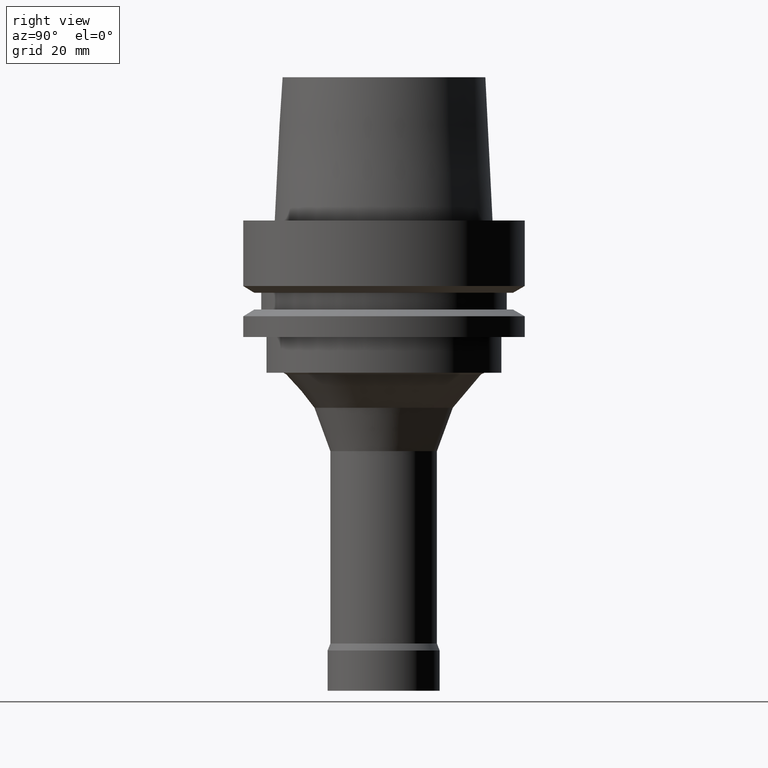
[diagram: clean part render]
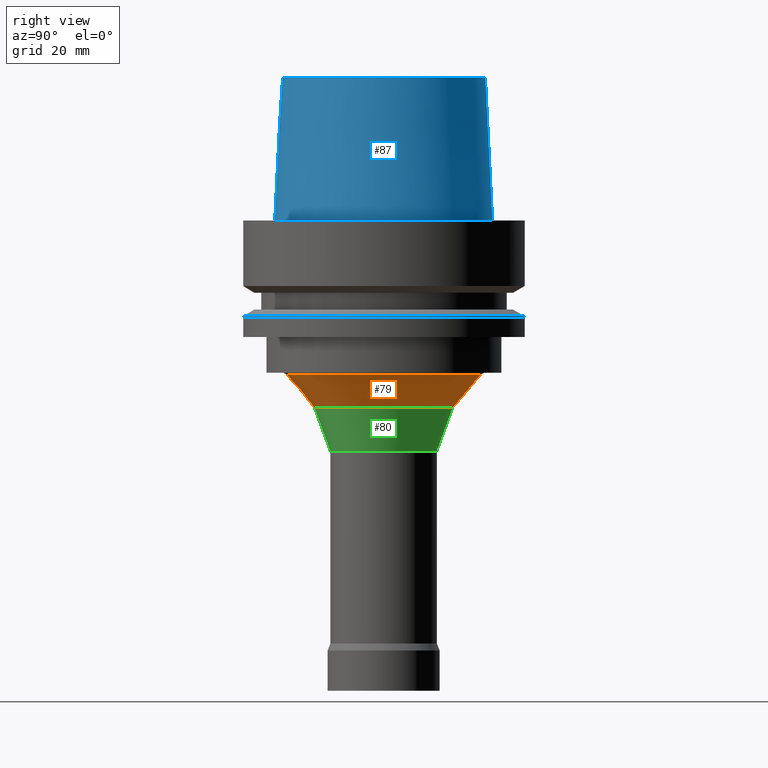
[diagram: same view with three faces highlighted in distinct colors, each labeled with its STEP entity id]
A machine part, right view with three faces highlighted in distinct colors.
Their STEP definitions:

[orange] entity #79 — the highlighted conical surface has half-angle 40.186 deg.
#79=ADVANCED_FACE('',(#108,#109),#110,.T.);
#108=FACE_BOUND('',#166,.T.);
#109=FACE_BOUND('',#167,.T.);
#110=CONICAL_SURFACE('',#168,18.588345855,0.701373291448891);
#166=EDGE_LOOP('',(#232));
#167=EDGE_LOOP('',(#233));
#168=AXIS2_PLACEMENT_3D('',#234,#235,#236);
#232=ORIENTED_EDGE('',*,*,#315,.F.);
#233=ORIENTED_EDGE('',*,*,#314,.T.);
#234=CARTESIAN_POINT('',(2.33181395155714E-015,4.66362790311428E-015,-38.08141177));
#235=DIRECTION('',(-6.12323399573677E-017,-1.22464679914735E-016,1.0));
#236=DIRECTION('',(-1.23259516440783E-032,1.0,1.22464679914735E-016));
#314=EDGE_CURVE('',#337,#337,#338,.T.);
#315=EDGE_CURVE('',#339,#339,#340,.T.);
#337=VERTEX_POINT('',#375);
#338=CIRCLE('',#376,21.73604323);
#339=VERTEX_POINT('',#377);
#340=CIRCLE('',#378,15.44064848);
#375=CARTESIAN_POINT('',(2.10362066387069E-015,21.73604323,-34.35473257));
#376=AXIS2_PLACEMENT_3D('',#417,#418,#419);
#377=CARTESIAN_POINT('',(2.56000723924359E-015,15.44064848,-41.80809097));
#378=AXIS2_PLACEMENT_3D('',#420,#421,#422);
#417=CARTESIAN_POINT('',(2.10362066387069E-015,4.20724132774138E-015,-34.35473257));
#418=DIRECTION('',(6.12323399573677E-017,1.22464679914735E-016,-1.0));
#419=DIRECTION('',(-1.23259516440783E-032,1.0,1.22464679914735E-016));
#420=CARTESIAN_POINT('',(2.56000723924359E-015,5.12001447848719E-015,-41.80809097));
#421=DIRECTION('',(6.12323399573677E-017,1.22464679914735E-016,-1.0));
#422=DIRECTION('',(-1.23259516440783E-032,1.0,1.22464679914735E-016));

[blue] entity #87 — the highlighted conical surface has half-angle 2.862 deg.
#87=ADVANCED_FACE('',(#130,#131),#132,.T.);
#130=FACE_BOUND('',#188,.T.);
#131=FACE_BOUND('',#189,.T.);
#132=CONICAL_SURFACE('',#190,23.5149999985447,0.0499583958256321);
#188=EDGE_LOOP('',(#270));
#189=EDGE_LOOP('',(#271));
#190=AXIS2_PLACEMENT_3D('',#272,#273,#274);
#270=ORIENTED_EDGE('',*,*,#322,.F.);
#271=ORIENTED_EDGE('',*,*,#321,.T.);
#272=CARTESIAN_POINT('',(-9.79717439317883E-016,-1.95943487863576E-015,16.0));
#273=DIRECTION('',(6.12323399573676E-017,1.22464679914735E-016,-1.0));
#274=DIRECTION('',(-1.23259516440783E-032,1.0,1.22464679914735E-016));
#321=EDGE_CURVE('',#351,#351,#352,.T.);
#322=EDGE_CURVE('',#353,#353,#354,.T.);
#351=VERTEX_POINT('',#389);
#352=CIRCLE('',#390,22.7149999968815);
#353=VERTEX_POINT('',#391);
#354=CIRCLE('',#392,24.3150000002079);
#389=CARTESIAN_POINT('',(-1.95943487863577E-015,22.7149999968815,32.0));
#390=AXIS2_PLACEMENT_3D('',#438,#439,#440);
#391=CARTESIAN_POINT('',(-2.99705514228327E-031,24.3150000002079,2.97772869215225E-015));
#392=AXIS2_PLACEMENT_3D('',#441,#442,#443);
#438=CARTESIAN_POINT('',(-1.95943487863577E-015,-3.91886975727153E-015,32.0));
#439=DIRECTION('',(6.12323399573677E-017,1.22464679914735E-016,-1.0));
#440=DIRECTION('',(-1.23259516440783E-032,1.0,1.22464679914735E-016));
#441=CARTESIAN_POINT('',(0.0,0.0,0.0));
#442=DIRECTION('',(6.12323399573677E-017,1.08546795432774E-016,-1.0));
#443=DIRECTION('',(-1.14737270099915E-032,1.0,1.08546795432774E-016));

[green] entity #80 — the highlighted conical surface has half-angle 20.093 deg.
#80=ADVANCED_FACE('',(#111,#112),#113,.T.);
#111=FACE_BOUND('',#169,.T.);
#112=FACE_BOUND('',#170,.T.);
#113=CONICAL_SURFACE('',#171,13.67032424,0.350686645318649);
#169=EDGE_LOOP('',(#237));
#170=EDGE_LOOP('',(#238));
#171=AXIS2_PLACEMENT_3D('',#239,#240,#241);
#237=ORIENTED_EDGE('',*,*,#316,.F.);
#238=ORIENTED_EDGE('',*,*,#315,.T.);
#239=CARTESIAN_POINT('',(2.85634149932858E-015,5.71268299865716E-015,-46.6475967));
#240=DIRECTION('',(-6.12323399573677E-017,-1.22464679914735E-016,1.0));
#241=DIRECTION('',(-1.23259516440783E-032,1.0,1.22464679914735E-016));
#315=EDGE_CURVE('',#339,#339,#340,.T.);
#316=EDGE_CURVE('',#341,#341,#342,.T.);
#339=VERTEX_POINT('',#377);
#340=CIRCLE('',#378,15.44064848);
#341=VERTEX_POINT('',#379);
#342=CIRCLE('',#380,11.9);
#377=CARTESIAN_POINT('',(2.56000723924359E-015,15.44064848,-41.80809097));
#378=AXIS2_PLACEMENT_3D('',#420,#421,#422);
#379=CARTESIAN_POINT('',(3.15267575941357E-015,11.9,-51.48710243));
#380=AXIS2_PLACEMENT_3D('',#423,#424,#425);
#420=CARTESIAN_POINT('',(2.56000723924359E-015,5.12001447848719E-015,-41.80809097));
#421=DIRECTION('',(6.12323399573677E-017,1.22464679914735E-016,-1.0));
#422=DIRECTION('',(-1.23259516440783E-032,1.0,1.22464679914735E-016));
#423=CARTESIAN_POINT('',(3.15267575941357E-015,6.30535151882714E-015,-51.48710243));
#424=DIRECTION('',(6.12323399573677E-017,1.22464679914735E-016,-1.0));
#425=DIRECTION('',(-1.23259516440783E-032,1.0,1.22464679914735E-016));